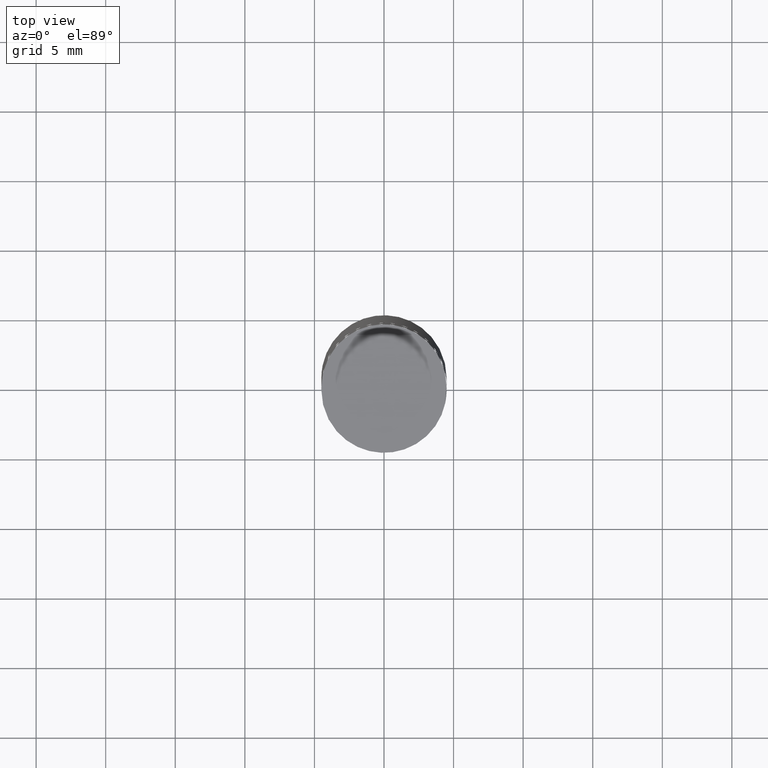
[diagram: clean part render]
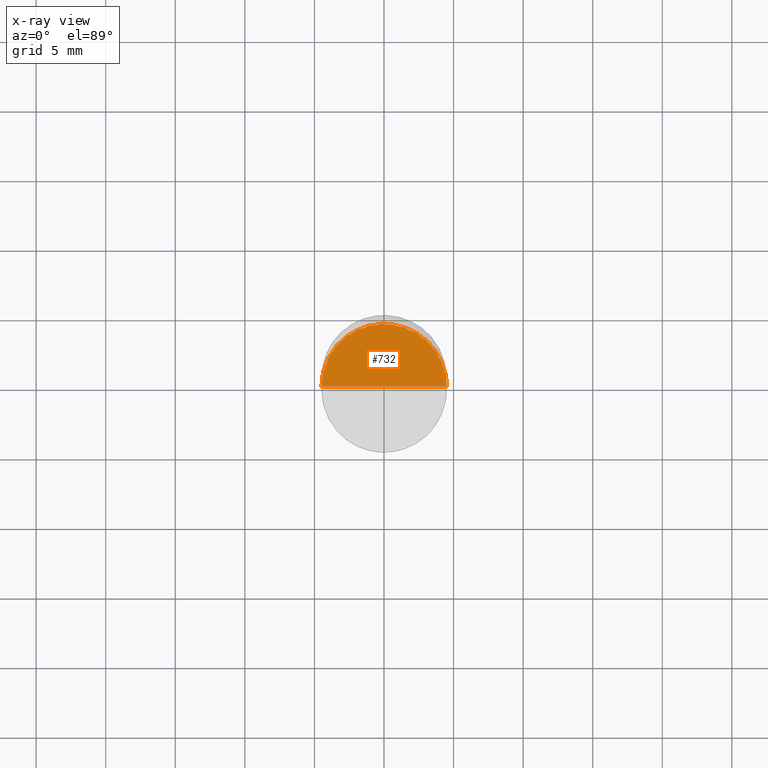
[diagram: x-ray — body ghosted, one internal face saturated and labeled with its STEP entity id]
A machine part, top view, then the same camera in x-ray: the body is ghosted and one INTERNAL B-rep face — a face not visible from any outside direction — is saturated and labeled: STEP entity #732.
In plain terms, the highlighted face is a freeform B-spline surface patch.
Its self-contained STEP definition (entity closure, byte-faithful):
#639=CARTESIAN_POINT('',(4.5,0.0,-6.0));
#640=CARTESIAN_POINT('',(4.5,4.5,-6.0));
#641=CARTESIAN_POINT('',(0.0,4.5,-6.0));
#642=CARTESIAN_POINT('',(-4.5,4.5,-6.0));
#643=CARTESIAN_POINT('',(-4.5,0.0,-6.0));
#644=CARTESIAN_POINT('',(0.0,0.0,-6.0));
#717=(
BOUNDED_SURFACE()
B_SPLINE_SURFACE(1,2,(
(#639,#640,#641,#642,#643),
(#644,#644,#644,#644,#644)
), .UNSPECIFIED.,.F.,.F.,.F.)
B_SPLINE_SURFACE_WITH_KNOTS((2,2),(3,2,3),(
0.0,1.0),(
0.0,0.5,1.0), .UNSPECIFIED.)
GEOMETRIC_REPRESENTATION_ITEM()
RATIONAL_B_SPLINE_SURFACE(((1.0,0.707106781187,1.0,0.707106781187,1.0),
(1.0,0.707106781187,1.0,0.707106781187,1.0)
))
REPRESENTATION_ITEM('')
SURFACE()
);
#718=(
BOUNDED_CURVE()
B_SPLINE_CURVE(2,(#643,#642,#641,#640,#639),.UNSPECIFIED.,.F.,.F.)
B_SPLINE_CURVE_WITH_KNOTS((3,2,3),
(0.0,0.5,1.0),.UNSPECIFIED.)
CURVE()
GEOMETRIC_REPRESENTATION_ITEM()
RATIONAL_B_SPLINE_CURVE((1.0,0.707106781187,1.0,0.707106781187,1.0))
REPRESENTATION_ITEM('')
);
#719=(
BOUNDED_CURVE()
B_SPLINE_CURVE(1,(#639,#644),.UNSPECIFIED.,.F.,.F.)
B_SPLINE_CURVE_WITH_KNOTS((2,2),
(0.0,1.0),.UNSPECIFIED.)
CURVE()
GEOMETRIC_REPRESENTATION_ITEM()
RATIONAL_B_SPLINE_CURVE((1.0,1.0))
REPRESENTATION_ITEM('')
);
#720=(
BOUNDED_CURVE()
B_SPLINE_CURVE(1,(#644,#643),.UNSPECIFIED.,.F.,.F.)
B_SPLINE_CURVE_WITH_KNOTS((2,2),
(0.0,1.0),.UNSPECIFIED.)
CURVE()
GEOMETRIC_REPRESENTATION_ITEM()
RATIONAL_B_SPLINE_CURVE((1.0,1.0))
REPRESENTATION_ITEM('')
);
#721=VERTEX_POINT('',#639);
#722=VERTEX_POINT('',#643);
#723=VERTEX_POINT('',#644);
#724=EDGE_CURVE('',#722,#721,#718,.T.);
#725=EDGE_CURVE('',#721,#723,#719,.T.);
#726=EDGE_CURVE('',#723,#722,#720,.T.);
#727=ORIENTED_EDGE('',*,*,#724,.T.);
#728=ORIENTED_EDGE('',*,*,#725,.T.);
#729=ORIENTED_EDGE('',*,*,#726,.T.);
#730=EDGE_LOOP('',(#727,#728,#729));
#731=FACE_OUTER_BOUND('',#730,.T.);
#732=ADVANCED_FACE('',(#731),#717,.T.);